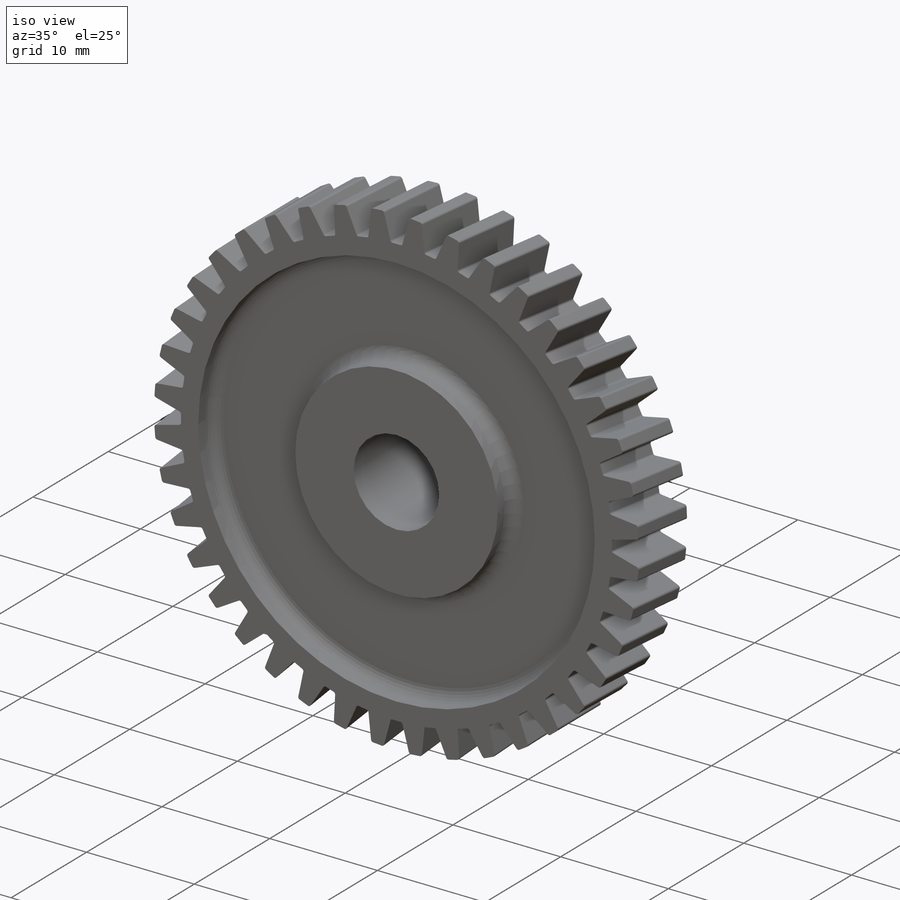
[diagram: iso view]
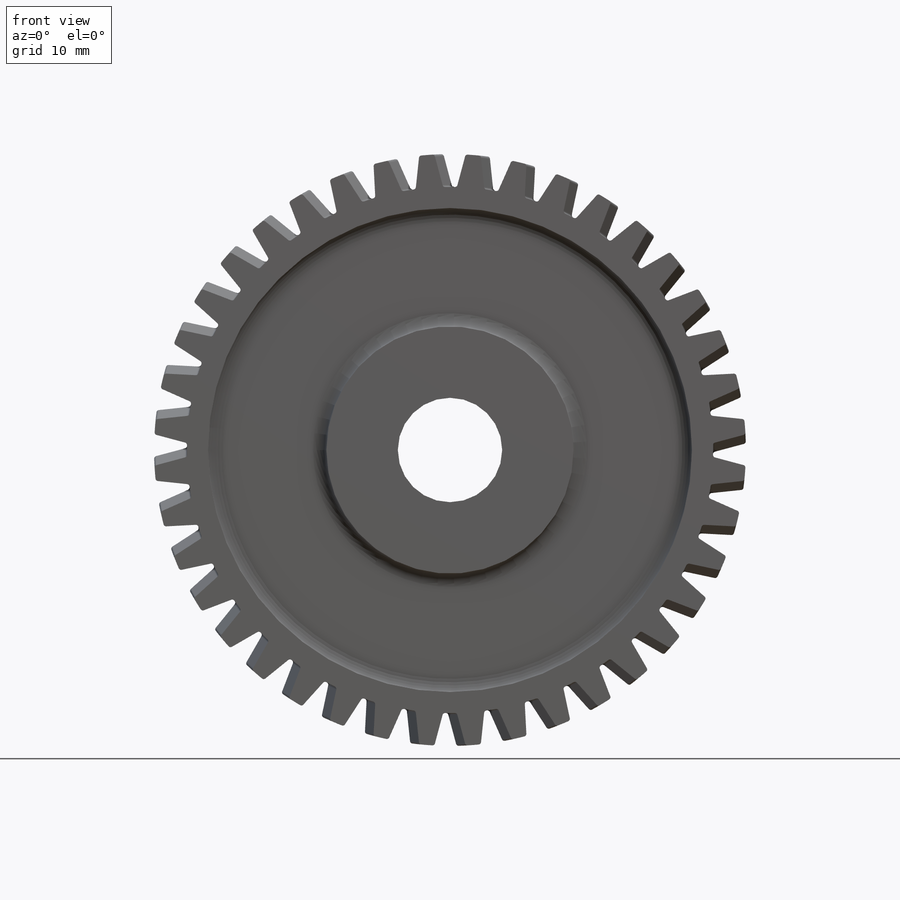
[diagram: front view]
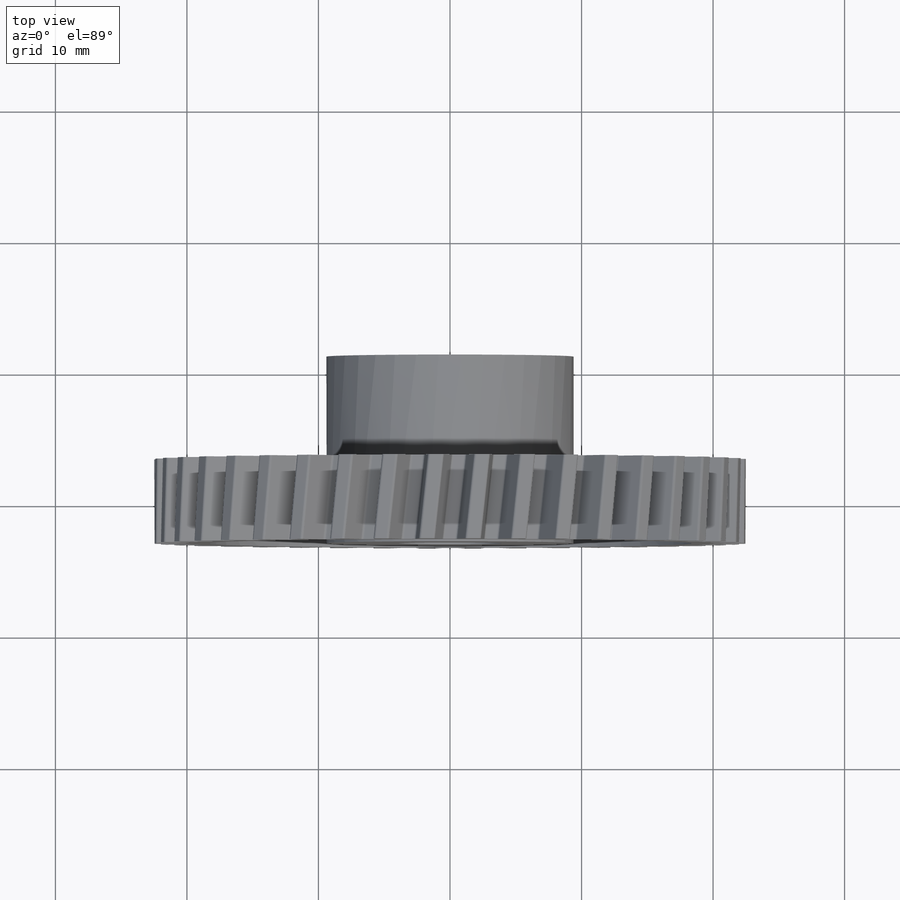
[diagram: top view]
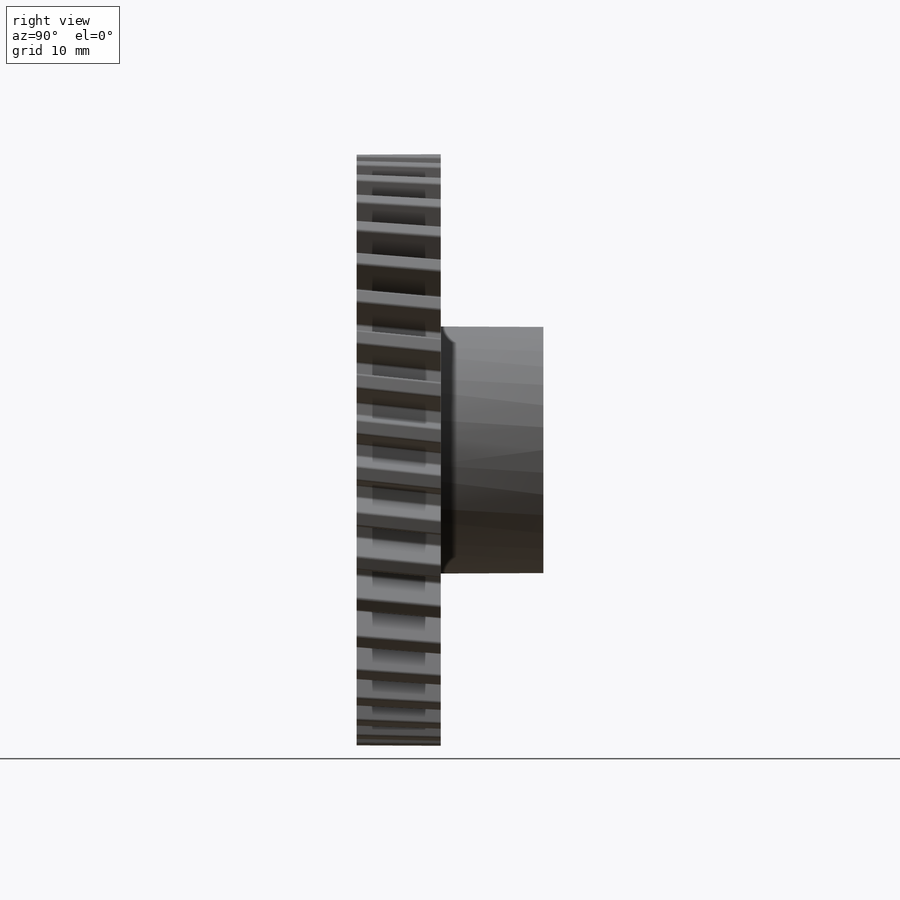
[diagram: right view]
SOLIDWORKS PART (.sldprt)
format: sldprt  version: not decoded by parser v0  size: 888,832 bytes
history: native  units: mm
features: sketch x3, fillet x2, material x1, revolve x1, sweep x1, pattern_circular x1 (+15 scaffold rows collapsed)
feature tree (24):
  scaffold x15  (default folders/planes/origin — collapsed)
  material  "Material <not specified>"
  sketch  "Sketch2"  dims[c1.D1=14.2mm c1.D2=3.2mm c1.D3=4.5mm c1.D4=4.0mm c1.D5=9.4mm c1.D6=9.0mm c1.D7=22.5mm c1.D8=6.4mm c2.D4=7.9375mm]
  revolve  "Revolve1"  Angle=360deg
  fillet  "Fillet1"  Radius=1mm
  sketch  "Sketch3"  dims[c1.D1=20.0mm c1.D2=1.05mm c1.D3=~2.78339mm c2.D3=15.0deg]
  sketch  "Sketch4"
  sweep  "Cut-Sweep1"
  pattern_circular  "CirPattern1"  Count=40 Angle=360deg
  fillet  "Fillet2"  Radius=0.2mm
decode coverage: 6 of 8 modeling features carry decoded parameters
note: ~ marks probable driven/reference dimensions
note: suppression state not decoded; provenance and decode notes live in map.json
